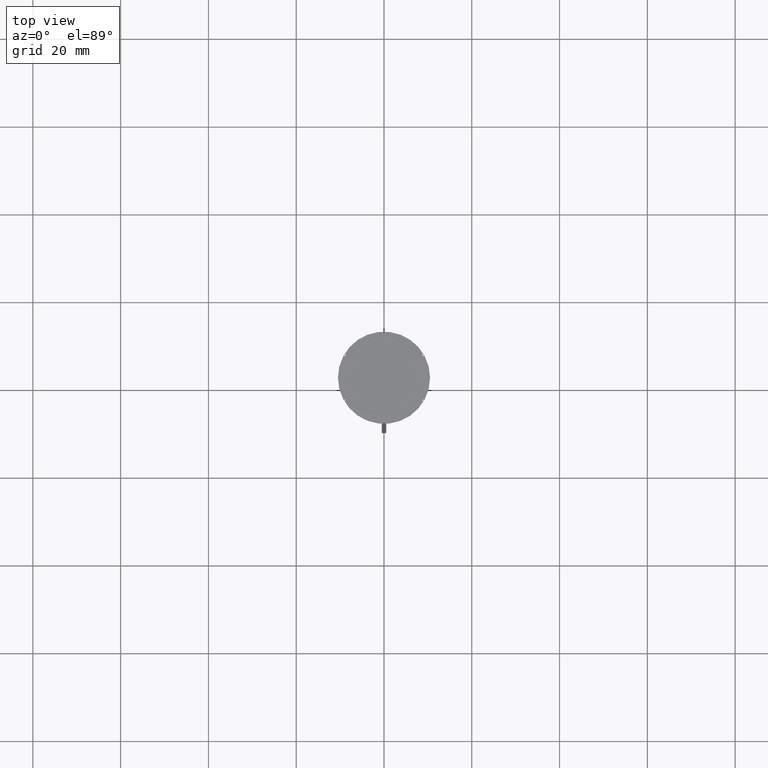
[diagram: clean part render]
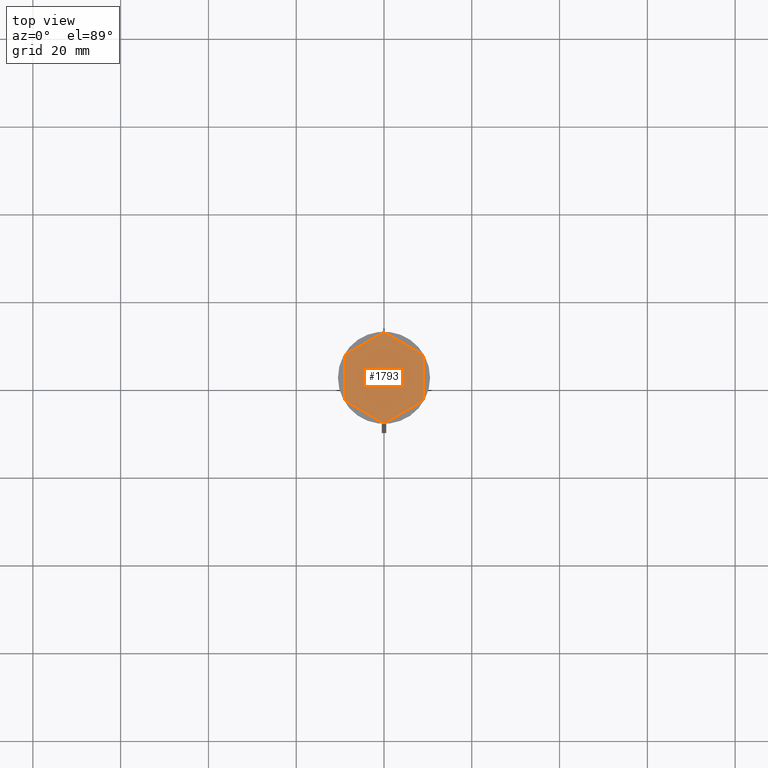
[diagram: same view with one face highlighted and labeled with its STEP entity id]
A machine part, top view. The second image highlights one B-rep face of the part: STEP entity #1793.
In plain terms, the highlighted planar face has unit normal (0, 0, 1).
Its self-contained STEP definition (entity closure, byte-faithful):
#1 = EDGE_CURVE ( 'NONE', #1837, #1158, #1534, .T. ) ;
#39 = PLANE ( 'NONE',  #446 ) ;
#53 = CARTESIAN_POINT ( 'NONE',  ( 0.000000000000000000, 10.39230484541326582, -1.000000000000000000 ) ) ;
#72 = ORIENTED_EDGE ( 'NONE', *, *, #634, .F. ) ;
#79 = CARTESIAN_POINT ( 'NONE',  ( 2.607697573705103160E-15, -10.39230484541326405, -1.000000000000000000 ) ) ;
#101 = ORIENTED_EDGE ( 'NONE', *, *, #226, .T. ) ;
#103 = CIRCLE ( 'NONE', #398, 10.19999999999999574 ) ;
#138 = ORIENTED_EDGE ( 'NONE', *, *, #2378, .F. ) ;
#144 = EDGE_CURVE ( 'NONE', #423, #153, #235, .T. ) ;
#146 = DIRECTION ( 'NONE',  ( -0.8660254037844385966, 0.5000000000000000000, 0.000000000000000000 ) ) ;
#151 = LINE ( 'NONE', #2353, #1897 ) ;
#153 = VERTEX_POINT ( 'NONE', #412 ) ;
#156 = DIRECTION ( 'NONE',  ( -1.877893248421449036E-16, -1.000000000000000000, 0.000000000000000000 ) ) ;
#161 = CARTESIAN_POINT ( 'NONE',  ( -8.000000000000000000, -4.618802153517006737, -1.000000000000000888 ) ) ;
#176 = VERTEX_POINT ( 'NONE', #1461 ) ;
#178 = EDGE_CURVE ( 'NONE', #1651, #2178, #103, .T. ) ;
#181 = VERTEX_POINT ( 'NONE', #1484 ) ;
#185 = DIRECTION ( 'NONE',  ( 1.000000000000000000, 8.881784197001252323E-16, 0.000000000000000000 ) ) ;
#189 = DIRECTION ( 'NONE',  ( 0.8660254037844385966, -0.4999999999999999445, 0.000000000000000000 ) ) ;
#191 = AXIS2_PLACEMENT_3D ( 'NONE', #693, #1676, #2331 ) ;
#198 = CARTESIAN_POINT ( 'NONE',  ( 0.000000000000000000, 0.000000000000000000, -1.000000000000000000 ) ) ;
#203 = CIRCLE ( 'NONE', #2163, 10.19999999999999574 ) ;
#224 = CARTESIAN_POINT ( 'NONE',  ( 8.000000000000000000, 2.872281323269014752, -1.000000000000000888 ) ) ;
#226 = EDGE_CURVE ( 'NONE', #602, #2182, #2100, .T. ) ;
#235 = CIRCLE ( 'NONE', #1510, 8.500000000000000000 ) ;
#250 = CARTESIAN_POINT ( 'NONE',  ( -1.512531407233448366, -8.364343891910017703, -1.000000000000000888 ) ) ;
#274 = EDGE_CURVE ( 'NONE', #1158, #1837, #1715, .T. ) ;
#284 = VECTOR ( 'NONE', #1231, 1000.000000000000114 ) ;
#287 = CARTESIAN_POINT ( 'NONE',  ( 0.3430780618347050170, 10.19422863405994306, -1.000000000000000000 ) ) ;
#293 = DIRECTION ( 'NONE',  ( 0.000000000000000000, 0.000000000000000000, 1.000000000000000000 ) ) ;
#307 = EDGE_CURVE ( 'NONE', #865, #2052, #1532, .T. ) ;
#324 = EDGE_LOOP ( 'NONE', ( #938, #2327, #395, #1693, #1762, #72, #717, #138, #1177, #1125, #101, #1115 ) ) ;
#336 = DIRECTION ( 'NONE',  ( 1.000000000000000000, 0.000000000000000000, 0.000000000000000000 ) ) ;
#394 = CARTESIAN_POINT ( 'NONE',  ( 0.000000000000000000, 0.000000000000000000, -1.000000000000000000 ) ) ;
#395 = ORIENTED_EDGE ( 'NONE', *, *, #1603, .T. ) ;
#398 = AXIS2_PLACEMENT_3D ( 'NONE', #1645, #468, #651 ) ;
#412 = CARTESIAN_POINT ( 'NONE',  ( 6.487468592766547637, -5.492062568641006060, -1.000000000000000888 ) ) ;
#417 = DIRECTION ( 'NONE',  ( 1.000000000000000000, 0.000000000000000000, 0.000000000000000000 ) ) ;
#421 = CARTESIAN_POINT ( 'NONE',  ( -0.3430780618347059052, 10.19422863405994306, -1.000000000000000000 ) ) ;
#423 = VERTEX_POINT ( 'NONE', #1317 ) ;
#433 = FACE_BOUND ( 'NONE', #1770, .T. ) ;
#446 = AXIS2_PLACEMENT_3D ( 'NONE', #394, #1178, #594 ) ;
#454 = DIRECTION ( 'NONE',  ( 1.000000000000000000, 0.000000000000000000, 0.000000000000000000 ) ) ;
#468 = DIRECTION ( 'NONE',  ( -0.000000000000000000, -0.000000000000000000, -1.000000000000000000 ) ) ;
#476 = VECTOR ( 'NONE', #1292, 1000.000000000000000 ) ;
#477 = AXIS2_PLACEMENT_3D ( 'NONE', #1536, #1735, #1974 ) ;
#486 = AXIS2_PLACEMENT_3D ( 'NONE', #2360, #1367, #2154 ) ;
#526 = VERTEX_POINT ( 'NONE', #2416 ) ;
#529 = DIRECTION ( 'NONE',  ( -0.000000000000000000, -0.000000000000000000, -1.000000000000000000 ) ) ;
#547 = DIRECTION ( 'NONE',  ( -0.8660254037844385966, 0.4999999999999999445, 0.000000000000000000 ) ) ;
#551 = CARTESIAN_POINT ( 'NONE',  ( 7.999999999999998224, -4.618802153517008513, -1.000000000000000888 ) ) ;
#558 = CARTESIAN_POINT ( 'NONE',  ( 9.000000000000001776, 5.196152422706632912, -1.000000000000000000 ) ) ;
#578 = CARTESIAN_POINT ( 'NONE',  ( -6.487468592766553854, 5.492062568640999842, -1.000000000000000888 ) ) ;
#580 = ORIENTED_EDGE ( 'NONE', *, *, #692, .F. ) ;
#588 = EDGE_CURVE ( 'NONE', #176, #2367, #1673, .T. ) ;
#592 = CARTESIAN_POINT ( 'NONE',  ( 9.000000000000001776, 4.799999999999988276, -1.000000000000000000 ) ) ;
#594 = DIRECTION ( 'NONE',  ( 1.000000000000000000, 0.000000000000000000, -0.000000000000000000 ) ) ;
#595 = EDGE_LOOP ( 'NONE', ( #2132, #1799, #2490 ) ) ;
#602 = VERTEX_POINT ( 'NONE', #718 ) ;
#607 = CARTESIAN_POINT ( 'NONE',  ( -0.3430780618347024080, -10.19422863405994306, -1.000000000000000000 ) ) ;
#608 = AXIS2_PLACEMENT_3D ( 'NONE', #1743, #2338, #1969 ) ;
#609 = VERTEX_POINT ( 'NONE', #287 ) ;
#615 = VERTEX_POINT ( 'NONE', #1084 ) ;
#632 = ORIENTED_EDGE ( 'NONE', *, *, #144, .F. ) ;
#634 = EDGE_CURVE ( 'NONE', #615, #2000, #1133, .T. ) ;
#651 = DIRECTION ( 'NONE',  ( 1.000000000000000000, 0.000000000000000000, 0.000000000000000000 ) ) ;
#676 = EDGE_CURVE ( 'NONE', #602, #2095, #2440, .T. ) ;
#680 = EDGE_CURVE ( 'NONE', #526, #739, #1978, .T. ) ;
#688 = VECTOR ( 'NONE', #146, 1000.000000000000227 ) ;
#692 = EDGE_CURVE ( 'NONE', #2052, #865, #2308, .T. ) ;
#693 = CARTESIAN_POINT ( 'NONE',  ( 0.000000000000000000, 0.000000000000000000, -1.000000000000000000 ) ) ;
#717 = ORIENTED_EDGE ( 'NONE', *, *, #1083, .T. ) ;
#718 = CARTESIAN_POINT ( 'NONE',  ( 0.3430780618347059052, -10.19422863405994306, -1.000000000000000000 ) ) ;
#727 = VECTOR ( 'NONE', #1868, 1000.000000000000000 ) ;
#736 = DIRECTION ( 'NONE',  ( 0.000000000000000000, 0.000000000000000000, 1.000000000000000000 ) ) ;
#739 = VERTEX_POINT ( 'NONE', #578 ) ;
#764 = CARTESIAN_POINT ( 'NONE',  ( -8.656921938165297092, 5.394228634059953009, -1.000000000000000000 ) ) ;
#787 = VERTEX_POINT ( 'NONE', #2383 ) ;
#788 = CARTESIAN_POINT ( 'NONE',  ( 8.656921938165297092, -5.394228634059953009, -1.000000000000000000 ) ) ;
#801 = EDGE_LOOP ( 'NONE', ( #632, #1355 ) ) ;
#807 = VECTOR ( 'NONE', #2255, 1000.000000000000000 ) ;
#839 = DIRECTION ( 'NONE',  ( -0.8660254037844385966, -0.5000000000000001110, 0.000000000000000000 ) ) ;
#840 = AXIS2_PLACEMENT_3D ( 'NONE', #1717, #736, #1527 ) ;
#846 = CARTESIAN_POINT ( 'NONE',  ( 9.000000000000001776, -5.196152422706632024, -1.000000000000000000 ) ) ;
#857 = CARTESIAN_POINT ( 'NONE',  ( 0.000000000000000000, 0.000000000000000000, -1.000000000000000000 ) ) ;
#865 = VERTEX_POINT ( 'NONE', #250 ) ;
#868 = DIRECTION ( 'NONE',  ( 0.000000000000000000, 1.000000000000000000, 0.000000000000000000 ) ) ;
#925 = EDGE_CURVE ( 'NONE', #1731, #2000, #1456, .T. ) ;
#928 = EDGE_CURVE ( 'NONE', #2367, #1751, #1634, .T. ) ;
#932 = CIRCLE ( 'NONE', #1057, 10.19999999999999574 ) ;
#938 = ORIENTED_EDGE ( 'NONE', *, *, #1866, .T. ) ;
#969 = VECTOR ( 'NONE', #2417, 1000.000000000000114 ) ;
#1016 = FACE_BOUND ( 'NONE', #1966, .T. ) ;
#1033 = CARTESIAN_POINT ( 'NONE',  ( -8.000000000000000000, -2.872281323269016085, -1.000000000000000888 ) ) ;
#1057 = AXIS2_PLACEMENT_3D ( 'NONE', #2437, #2246, #454 ) ;
#1065 = CARTESIAN_POINT ( 'NONE',  ( 1.512531407233448366, 8.364343891910017703, -1.000000000000000888 ) ) ;
#1073 = VERTEX_POINT ( 'NONE', #1472 ) ;
#1083 = EDGE_CURVE ( 'NONE', #615, #181, #1905, .T. ) ;
#1084 = CARTESIAN_POINT ( 'NONE',  ( -9.000000000000001776, 4.799999999999988276, -1.000000000000000000 ) ) ;
#1107 = CARTESIAN_POINT ( 'NONE',  ( 0.000000000000000000, 0.000000000000000000, -1.000000000000000000 ) ) ;
#1115 = ORIENTED_EDGE ( 'NONE', *, *, #2075, .F. ) ;
#1119 = EDGE_CURVE ( 'NONE', #1073, #2095, #151, .T. ) ;
#1125 = ORIENTED_EDGE ( 'NONE', *, *, #676, .F. ) ;
#1133 = CIRCLE ( 'NONE', #2396, 10.19999999999999574 ) ;
#1150 = VERTEX_POINT ( 'NONE', #1756 ) ;
#1158 = VERTEX_POINT ( 'NONE', #2328 ) ;
#1177 = ORIENTED_EDGE ( 'NONE', *, *, #1119, .T. ) ;
#1178 = DIRECTION ( 'NONE',  ( 0.000000000000000000, 0.000000000000000000, 1.000000000000000000 ) ) ;
#1183 = DIRECTION ( 'NONE',  ( 0.000000000000000000, 0.000000000000000000, 1.000000000000000000 ) ) ;
#1194 = CARTESIAN_POINT ( 'NONE',  ( -8.000000000000000000, 2.872281323269016085, -1.000000000000000888 ) ) ;
#1196 = ORIENTED_EDGE ( 'NONE', *, *, #1, .F. ) ;
#1214 = LINE ( 'NONE', #2016, #284 ) ;
#1231 = DIRECTION ( 'NONE',  ( 0.8660254037844384856, 0.5000000000000003331, -0.000000000000000000 ) ) ;
#1232 = CIRCLE ( 'NONE', #608, 8.500000000000000000 ) ;
#1233 = AXIS2_PLACEMENT_3D ( 'NONE', #198, #1607, #417 ) ;
#1234 = FACE_BOUND ( 'NONE', #801, .T. ) ;
#1236 = ORIENTED_EDGE ( 'NONE', *, *, #2458, .F. ) ;
#1292 = DIRECTION ( 'NONE',  ( 0.8660254037844385966, 0.5000000000000001110, 0.000000000000000000 ) ) ;
#1317 = CARTESIAN_POINT ( 'NONE',  ( 1.512531407233452363, -8.364343891910017703, -1.000000000000000888 ) ) ;
#1325 = ORIENTED_EDGE ( 'NONE', *, *, #307, .F. ) ;
#1329 = EDGE_LOOP ( 'NONE', ( #2551, #1196 ) ) ;
#1355 = ORIENTED_EDGE ( 'NONE', *, *, #1746, .F. ) ;
#1367 = DIRECTION ( 'NONE',  ( -0.000000000000000000, -0.000000000000000000, -1.000000000000000000 ) ) ;
#1414 = CARTESIAN_POINT ( 'NONE',  ( 0.000000000000000000, 0.000000000000000000, -1.000000000000000000 ) ) ;
#1426 = FACE_BOUND ( 'NONE', #1329, .T. ) ;
#1448 = LINE ( 'NONE', #846, #1817 ) ;
#1456 = LINE ( 'NONE', #53, #1722 ) ;
#1461 = CARTESIAN_POINT ( 'NONE',  ( -8.500000000000000000, 0.000000000000000000, -1.000000000000000000 ) ) ;
#1472 = CARTESIAN_POINT ( 'NONE',  ( -8.656921938165295316, -5.394228634059957450, -1.000000000000000000 ) ) ;
#1484 = CARTESIAN_POINT ( 'NONE',  ( -9.000000000000001776, -4.799999999999988276, -1.000000000000000000 ) ) ;
#1489 = DIRECTION ( 'NONE',  ( 1.000000000000000000, 0.000000000000000000, 0.000000000000000000 ) ) ;
#1510 = AXIS2_PLACEMENT_3D ( 'NONE', #1414, #1183, #1582 ) ;
#1520 = LINE ( 'NONE', #558, #688 ) ;
#1527 = DIRECTION ( 'NONE',  ( 1.000000000000000000, 0.000000000000000000, 0.000000000000000000 ) ) ;
#1528 = LINE ( 'NONE', #551, #2245 ) ;
#1532 = LINE ( 'NONE', #161, #2059 ) ;
#1534 = LINE ( 'NONE', #2521, #1668 ) ;
#1536 = CARTESIAN_POINT ( 'NONE',  ( 0.000000000000000000, 0.000000000000000000, -1.000000000000000000 ) ) ;
#1552 = EDGE_CURVE ( 'NONE', #787, #1789, #1232, .T. ) ;
#1565 = CIRCLE ( 'NONE', #486, 10.19999999999999574 ) ;
#1582 = DIRECTION ( 'NONE',  ( 1.000000000000000000, 0.000000000000000000, 0.000000000000000000 ) ) ;
#1592 = AXIS2_PLACEMENT_3D ( 'NONE', #2315, #529, #336 ) ;
#1603 = EDGE_CURVE ( 'NONE', #1651, #609, #1520, .T. ) ;
#1607 = DIRECTION ( 'NONE',  ( 0.000000000000000000, 0.000000000000000000, 1.000000000000000000 ) ) ;
#1634 = LINE ( 'NONE', #1801, #807 ) ;
#1645 = CARTESIAN_POINT ( 'NONE',  ( 0.000000000000000000, 0.000000000000000000, -1.000000000000000000 ) ) ;
#1651 = VERTEX_POINT ( 'NONE', #1768 ) ;
#1665 = EDGE_LOOP ( 'NONE', ( #2463, #1670 ) ) ;
#1668 = VECTOR ( 'NONE', #189, 1000.000000000000114 ) ;
#1670 = ORIENTED_EDGE ( 'NONE', *, *, #2137, .F. ) ;
#1673 = CIRCLE ( 'NONE', #191, 8.500000000000000000 ) ;
#1676 = DIRECTION ( 'NONE',  ( 0.000000000000000000, 0.000000000000000000, 1.000000000000000000 ) ) ;
#1693 = ORIENTED_EDGE ( 'NONE', *, *, #2057, .F. ) ;
#1701 = CARTESIAN_POINT ( 'NONE',  ( -9.000000000000001776, 5.196152422706632024, -1.000000000000000000 ) ) ;
#1715 = CIRCLE ( 'NONE', #1889, 8.500000000000000000 ) ;
#1717 = CARTESIAN_POINT ( 'NONE',  ( 0.000000000000000000, 0.000000000000000000, -1.000000000000000000 ) ) ;
#1722 = VECTOR ( 'NONE', #839, 1000.000000000000000 ) ;
#1731 = VERTEX_POINT ( 'NONE', #421 ) ;
#1735 = DIRECTION ( 'NONE',  ( 0.000000000000000000, 0.000000000000000000, 1.000000000000000000 ) ) ;
#1743 = CARTESIAN_POINT ( 'NONE',  ( 0.000000000000000000, 0.000000000000000000, -1.000000000000000000 ) ) ;
#1746 = EDGE_CURVE ( 'NONE', #153, #423, #1824, .T. ) ;
#1751 = VERTEX_POINT ( 'NONE', #1194 ) ;
#1756 = CARTESIAN_POINT ( 'NONE',  ( 9.000000000000001776, -4.799999999999988276, -1.000000000000000000 ) ) ;
#1762 = ORIENTED_EDGE ( 'NONE', *, *, #925, .T. ) ;
#1768 = CARTESIAN_POINT ( 'NONE',  ( 8.656921938165297092, 5.394228634059953897, -1.000000000000000000 ) ) ;
#1770 = EDGE_LOOP ( 'NONE', ( #1919, #1236 ) ) ;
#1789 = VERTEX_POINT ( 'NONE', #224 ) ;
#1793 = ADVANCED_FACE ( 'NONE', ( #1426, #433, #1234, #1016, #2234, #2185, #2387 ), #39, .T. ) ;
#1799 = ORIENTED_EDGE ( 'NONE', *, *, #928, .F. ) ;
#1801 = CARTESIAN_POINT ( 'NONE',  ( -8.000000000000000000, 4.618802153517004072, -1.000000000000000888 ) ) ;
#1817 = VECTOR ( 'NONE', #868, 1000.000000000000000 ) ;
#1824 = LINE ( 'NONE', #2401, #969 ) ;
#1837 = VERTEX_POINT ( 'NONE', #1065 ) ;
#1866 = EDGE_CURVE ( 'NONE', #1150, #2178, #1448, .T. ) ;
#1868 = DIRECTION ( 'NONE',  ( 0.000000000000000000, -1.000000000000000000, 0.000000000000000000 ) ) ;
#1889 = AXIS2_PLACEMENT_3D ( 'NONE', #857, #293, #2049 ) ;
#1897 = VECTOR ( 'NONE', #2565, 1000.000000000000114 ) ;
#1905 = LINE ( 'NONE', #1701, #727 ) ;
#1919 = ORIENTED_EDGE ( 'NONE', *, *, #1552, .F. ) ;
#1966 = EDGE_LOOP ( 'NONE', ( #580, #1325 ) ) ;
#1967 = DIRECTION ( 'NONE',  ( -0.000000000000000000, -0.000000000000000000, -1.000000000000000000 ) ) ;
#1969 = DIRECTION ( 'NONE',  ( 1.000000000000000000, 0.000000000000000000, 0.000000000000000000 ) ) ;
#1974 = DIRECTION ( 'NONE',  ( 1.000000000000000000, 0.000000000000000000, 0.000000000000000000 ) ) ;
#1978 = CIRCLE ( 'NONE', #840, 8.500000000000000000 ) ;
#2000 = VERTEX_POINT ( 'NONE', #764 ) ;
#2016 = CARTESIAN_POINT ( 'NONE',  ( 8.673617379884035472E-16, 9.237604307034013473, -1.000000000000000888 ) ) ;
#2049 = DIRECTION ( 'NONE',  ( 1.000000000000000000, 0.000000000000000000, 0.000000000000000000 ) ) ;
#2052 = VERTEX_POINT ( 'NONE', #2531 ) ;
#2057 = EDGE_CURVE ( 'NONE', #1731, #609, #1565, .T. ) ;
#2059 = VECTOR ( 'NONE', #547, 1000.000000000000114 ) ;
#2075 = EDGE_CURVE ( 'NONE', #1150, #2182, #203, .T. ) ;
#2095 = VERTEX_POINT ( 'NONE', #607 ) ;
#2100 = LINE ( 'NONE', #79, #476 ) ;
#2104 = EDGE_CURVE ( 'NONE', #1751, #176, #2576, .T. ) ;
#2132 = ORIENTED_EDGE ( 'NONE', *, *, #2104, .F. ) ;
#2137 = EDGE_CURVE ( 'NONE', #739, #526, #1214, .T. ) ;
#2154 = DIRECTION ( 'NONE',  ( 1.000000000000000000, 1.598721155460225418E-14, 0.000000000000000000 ) ) ;
#2163 = AXIS2_PLACEMENT_3D ( 'NONE', #1107, #1967, #185 ) ;
#2178 = VERTEX_POINT ( 'NONE', #592 ) ;
#2182 = VERTEX_POINT ( 'NONE', #788 ) ;
#2185 = FACE_BOUND ( 'NONE', #1665, .T. ) ;
#2234 = FACE_BOUND ( 'NONE', #595, .T. ) ;
#2245 = VECTOR ( 'NONE', #156, 1000.000000000000000 ) ;
#2246 = DIRECTION ( 'NONE',  ( -0.000000000000000000, -0.000000000000000000, -1.000000000000000000 ) ) ;
#2255 = DIRECTION ( 'NONE',  ( 0.000000000000000000, 1.000000000000000000, 0.000000000000000000 ) ) ;
#2275 = CARTESIAN_POINT ( 'NONE',  ( 0.000000000000000000, 0.000000000000000000, -1.000000000000000000 ) ) ;
#2308 = CIRCLE ( 'NONE', #477, 8.500000000000000000 ) ;
#2315 = CARTESIAN_POINT ( 'NONE',  ( 0.000000000000000000, 0.000000000000000000, -1.000000000000000000 ) ) ;
#2327 = ORIENTED_EDGE ( 'NONE', *, *, #178, .F. ) ;
#2328 = CARTESIAN_POINT ( 'NONE',  ( 6.487468592766552078, 5.492062568641001619, -1.000000000000000888 ) ) ;
#2331 = DIRECTION ( 'NONE',  ( 1.000000000000000000, 0.000000000000000000, 0.000000000000000000 ) ) ;
#2338 = DIRECTION ( 'NONE',  ( 0.000000000000000000, 0.000000000000000000, 1.000000000000000000 ) ) ;
#2353 = CARTESIAN_POINT ( 'NONE',  ( -9.000000000000001776, -5.196152422706632912, -1.000000000000000000 ) ) ;
#2360 = CARTESIAN_POINT ( 'NONE',  ( 0.000000000000000000, 0.000000000000000000, -1.000000000000000000 ) ) ;
#2367 = VERTEX_POINT ( 'NONE', #1033 ) ;
#2378 = EDGE_CURVE ( 'NONE', #1073, #181, #932, .T. ) ;
#2383 = CARTESIAN_POINT ( 'NONE',  ( 8.000000000000000000, -2.872281323269017417, -1.000000000000000888 ) ) ;
#2387 = FACE_OUTER_BOUND ( 'NONE', #324, .T. ) ;
#2396 = AXIS2_PLACEMENT_3D ( 'NONE', #2275, #2500, #1489 ) ;
#2401 = CARTESIAN_POINT ( 'NONE',  ( -8.673617379884035472E-16, -9.237604307034013473, -1.000000000000000888 ) ) ;
#2416 = CARTESIAN_POINT ( 'NONE',  ( -1.512531407233451475, 8.364343891910017703, -1.000000000000000888 ) ) ;
#2417 = DIRECTION ( 'NONE',  ( -0.8660254037844387076, -0.4999999999999998335, 0.000000000000000000 ) ) ;
#2437 = CARTESIAN_POINT ( 'NONE',  ( 0.000000000000000000, 0.000000000000000000, -1.000000000000000000 ) ) ;
#2440 = CIRCLE ( 'NONE', #1592, 10.19999999999999574 ) ;
#2458 = EDGE_CURVE ( 'NONE', #1789, #787, #1528, .T. ) ;
#2463 = ORIENTED_EDGE ( 'NONE', *, *, #680, .F. ) ;
#2490 = ORIENTED_EDGE ( 'NONE', *, *, #588, .F. ) ;
#2500 = DIRECTION ( 'NONE',  ( -0.000000000000000000, -0.000000000000000000, -1.000000000000000000 ) ) ;
#2521 = CARTESIAN_POINT ( 'NONE',  ( 8.000000000000000000, 4.618802153517006737, -1.000000000000000888 ) ) ;
#2531 = CARTESIAN_POINT ( 'NONE',  ( -6.487468592766552078, -5.492062568641001619, -1.000000000000000888 ) ) ;
#2551 = ORIENTED_EDGE ( 'NONE', *, *, #274, .F. ) ;
#2565 = DIRECTION ( 'NONE',  ( 0.8660254037844387076, -0.4999999999999997224, 0.000000000000000000 ) ) ;
#2576 = CIRCLE ( 'NONE', #1233, 8.500000000000000000 ) ;